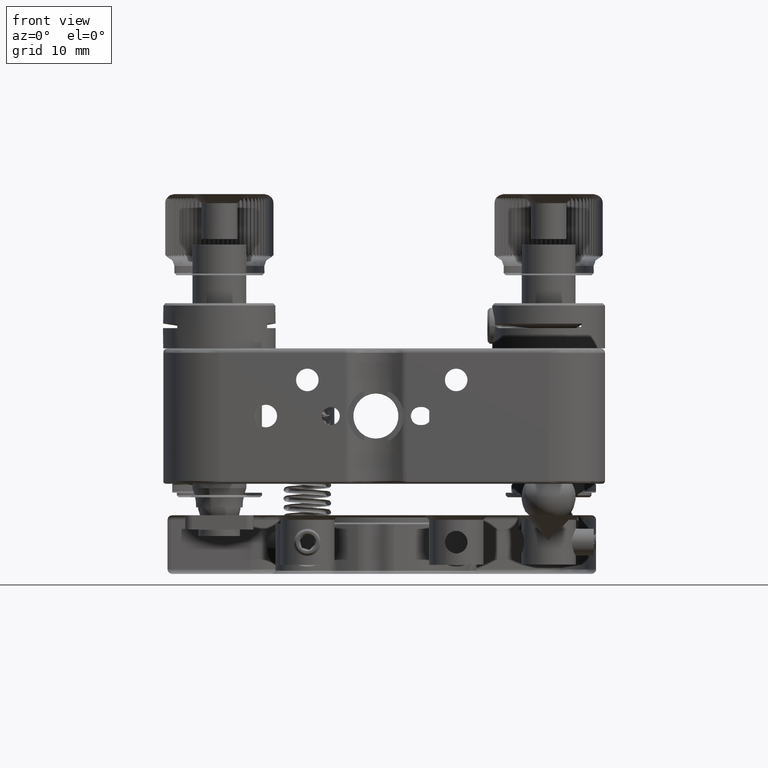
[diagram: clean part render]
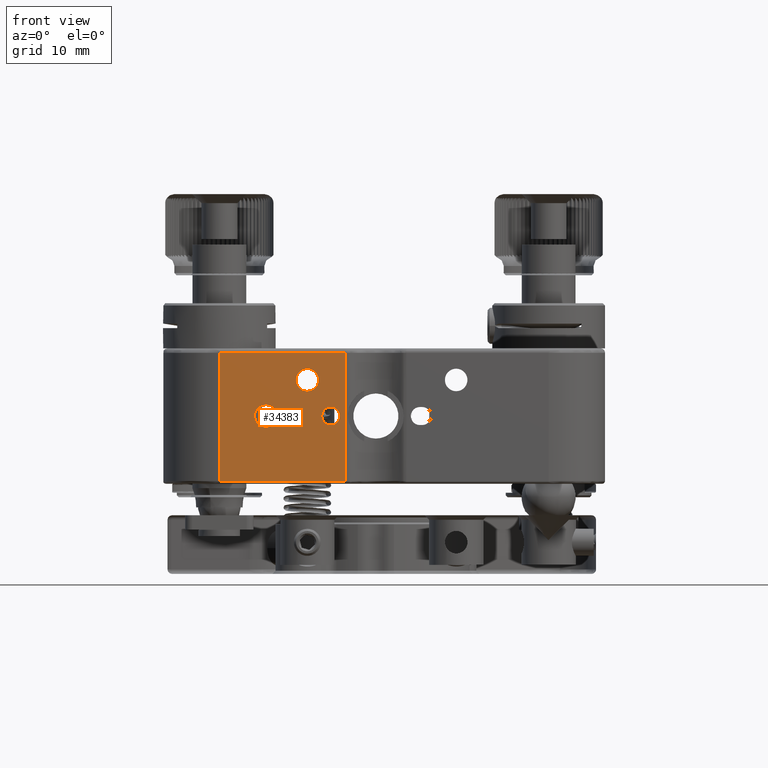
[diagram: same view with one face highlighted and labeled with its STEP entity id]
A machine part, front view. The second image highlights one B-rep face of the part: STEP entity #34383.
In plain terms, the highlighted planar face has unit normal (0, 1, 0).
Its self-contained STEP definition (entity closure, byte-faithful):
#157 = EDGE_LOOP ( 'NONE', ( #32405, #35782 ) ) ;
#788 = CARTESIAN_POINT ( 'NONE',  ( -14.22810262512532020, -24.50000000000000355, 0.5389796670263266032 ) ) ;
#1160 = CARTESIAN_POINT ( 'NONE',  ( -12.71428919564071158, -24.49999999999999289, -1.189204713810559033 ) ) ;
#1221 = ORIENTED_EDGE ( 'NONE', *, *, #4193, .F. ) ;
#1595 = CARTESIAN_POINT ( 'NONE',  ( -12.07471000977168529, -24.49999999999999645, -0.7243921280120796391 ) ) ;
#1926 = CARTESIAN_POINT ( 'NONE',  ( -9.000006458386573982, -24.50000000000000000, 2.854149930823155934 ) ) ;
#2022 = CARTESIAN_POINT ( 'NONE',  ( -11.92357851992510831, -24.50000000000000355, 0.4230013043505224668 ) ) ;
#2142 = CARTESIAN_POINT ( 'NONE',  ( -9.323014498037817788, -24.49999999999999645, 3.055195079937230496 ) ) ;
#2384 = B_SPLINE_CURVE_WITH_KNOTS ( 'NONE', 3,
 ( #31352, #20215, #14181, #31137, #27800, #34700, #10824, #41424, #30473, #24440, #27571, #13514, #41205, #37854, #38073, #4087, #26903, #44113, #41863, #11269, #31792, #4977, #24660, #24875, #8332, #4300, #17965, #4525, #11045, #25318, #18195, #14398, #38296, #22185 ),
 .UNSPECIFIED., .F., .F.,
 ( 4, 1, 1, 2, 2, 2, 1, 1, 2, 2, 2, 1, 1, 2, 2, 2, 1, 1, 2, 2, 4 ),
 ( 0.000000000000000000, 0.06249999999999768241, 0.09374999999999654443, 0.1093749999999966971, 0.1249999999999968359, 0.2499999999999985012, 0.3124999999999995004, 0.3437500000000000000, 0.3593750000000001110, 0.3750000000000001665, 0.5000000000000000000, 0.5624999999999998890, 0.5937499999999994449, 0.6093749999999987788, 0.6249999999999982236, 0.7499999999999960032, 0.8124999999999952260, 0.8437499999999955591, 0.8593749999999957812, 0.8749999999999960032, 1.000000000000000000 ),
 .UNSPECIFIED. ) ;
#2665 = ORIENTED_EDGE ( 'NONE', *, *, #43011, .F. ) ;
#2766 = VERTEX_POINT ( 'NONE', #12212 ) ;
#2811 = CARTESIAN_POINT ( 'NONE',  ( -8.812503971910276235, -24.50000000000000711, 2.779254874557330890 ) ) ;
#2980 = EDGE_CURVE ( 'NONE', #12506, #12506, #4819, .T. ) ;
#3599 = VERTEX_POINT ( 'NONE', #22978 ) ;
#4087 = CARTESIAN_POINT ( 'NONE',  ( -7.279322472432155244, -24.49999999999999645, 3.687325485216337295 ) ) ;
#4193 = EDGE_CURVE ( 'NONE', #3599, #42985, #39685, .T. ) ;
#4196 = LINE ( 'NONE', #27910, #12811 ) ;
#4300 = CARTESIAN_POINT ( 'NONE',  ( -7.676985501962285241, -24.49999999999999289, 4.944804920062807696 ) ) ;
#4375 = CARTESIAN_POINT ( 'NONE',  ( -14.04480492006297254, -24.49999999999998934, 0.8230144980380312836 ) ) ;
#4525 = CARTESIAN_POINT ( 'NONE',  ( -7.903475382809300065, -24.49999999999999645, 5.100119322147149248 ) ) ;
#4600 = CARTESIAN_POINT ( 'NONE',  ( -14.24585006917693697, -24.50000000000001066, 0.5000064583866753454 ) ) ;
#4747 = CARTESIAN_POINT ( 'NONE',  ( -13.09999999999999787, -24.49999999999999645, -1.249999999999988898 ) ) ;
#4819 = CIRCLE ( 'NONE', #11290, 1.000000000000000000 ) ;
#4973 = CARTESIAN_POINT ( 'NONE',  ( -11.91076689319975479, -24.50000000000000000, 0.3856389984865310483 ) ) ;
#4977 = CARTESIAN_POINT ( 'NONE',  ( -7.323578519925167285, -24.49999999999999645, 4.423001304350517415 ) ) ;
#5067 = VERTEX_POINT ( 'NONE', #18056 ) ;
#5181 = CARTESIAN_POINT ( 'NONE',  ( -14.19890197946528154, -24.50000000000000711, -0.6202885519843136519 ) ) ;
#5309 = VECTOR ( 'NONE', #29624, 1000.000000000000000 ) ;
#5736 = CARTESIAN_POINT ( 'NONE',  ( -9.670152050935886479, -24.49999999999999645, 3.559902883676698160 ) ) ;
#6706 = EDGE_LOOP ( 'NONE', ( #19573, #29398, #2665, #1221 ) ) ;
#7519 = CARTESIAN_POINT ( 'NONE',  ( -13.09999999999999787, -24.49999999999999645, 1.249999999999988898 ) ) ;
#7958 = CARTESIAN_POINT ( 'NONE',  ( -13.29644242615619376, -24.49999999999998934, 1.239029422040993644 ) ) ;
#8103 = CARTESIAN_POINT ( 'NONE',  ( -12.67695880349794457, -24.49999999999999289, -1.176405706191731237 ) ) ;
#8325 = CARTESIAN_POINT ( 'NONE',  ( -12.90355757384351776, -24.50000000000000355, -1.239029422040994532 ) ) ;
#8332 = CARTESIAN_POINT ( 'NONE',  ( -7.494378566625884197, -24.49999999999999289, 4.762040589323907724 ) ) ;
#8451 = CARTESIAN_POINT ( 'NONE',  ( -8.499999999999996447, -24.49999999999999645, 5.249999999999987566 ) ) ;
#8772 = CARTESIAN_POINT ( 'NONE',  ( -12.50347538280958304, -24.49999999999999645, 1.100119322147436574 ) ) ;
#8864 = AXIS2_PLACEMENT_3D ( 'NONE', #10209, #43941, #20262 ) ;
#8894 = CARTESIAN_POINT ( 'NONE',  ( -9.505621433373882212, -24.50000000000000000, 3.237959410676004790 ) ) ;
#9660 = VERTEX_POINT ( 'NONE', #27824 ) ;
#9889 = CARTESIAN_POINT ( 'NONE',  ( -13.09999999999999787, -24.49999999999999645, 1.249999999999988898 ) ) ;
#10209 = CARTESIAN_POINT ( 'NONE',  ( -24.49999999999999645, -24.49999999999999645, 7.500000000000000000 ) ) ;
#10769 = CARTESIAN_POINT ( 'NONE',  ( -4.276388603226822127, -24.49999999999999645, 7.500000000000000000 ) ) ;
#10824 = CARTESIAN_POINT ( 'NONE',  ( -8.059902883676750562, -24.49999999999999645, 2.829847949064069557 ) ) ;
#11045 = CARTESIAN_POINT ( 'NONE',  ( -7.961020332973944846, -24.49999999999999645, 5.128102625125183778 ) ) ;
#11121 = CARTESIAN_POINT ( 'NONE',  ( -14.32067752756757706, -24.50000000000000000, 0.3126745147832391547 ) ) ;
#11223 = EDGE_LOOP ( 'NONE', ( #12351 ) ) ;
#11269 = CARTESIAN_POINT ( 'NONE',  ( -7.292923930133398791, -24.49999999999999289, 4.329350316428354439 ) ) ;
#11290 = AXIS2_PLACEMENT_3D ( 'NONE', #15992, #43247, #26257 ) ;
#11482 = CARTESIAN_POINT ( 'NONE',  ( -12.27698550196250515, -24.50000000000000355, 0.9448049200630257438 ) ) ;
#11599 = CARTESIAN_POINT ( 'NONE',  ( -8.923041196502039085, -24.49999999999999645, 5.176405706191729017 ) ) ;
#11625 = EDGE_CURVE ( 'NONE', #39552, #3599, #4196, .T. ) ;
#11701 = CARTESIAN_POINT ( 'NONE',  ( -12.56102033297412568, -24.50000000000000000, 1.128102625125367631 ) ) ;
#11824 = CARTESIAN_POINT ( 'NONE',  ( -9.645850069176798769, -24.49999999999999645, 4.500006458386681452 ) ) ;
#11922 = CARTESIAN_POINT ( 'NONE',  ( -12.15519507993708892, -24.49999999999999645, -0.8230144980376100650 ) ) ;
#12045 = CARTESIAN_POINT ( 'NONE',  ( -8.885710804359266746, -24.49999999999999645, 5.189204713810555702 ) ) ;
#12212 = CARTESIAN_POINT ( 'NONE',  ( -8.499999999999996447, -24.49999999999999645, 2.750000000000009326 ) ) ;
#12351 = ORIENTED_EDGE ( 'NONE', *, *, #2980, .F. ) ;
#12356 = CARTESIAN_POINT ( 'NONE',  ( -13.63897966702616671, -24.50000000000000000, -1.128102625125190217 ) ) ;
#12506 = VERTEX_POINT ( 'NONE', #40406 ) ;
#12618 = VECTOR ( 'NONE', #17154, 1000.000000000000000 ) ;
#12678 = FACE_BOUND ( 'NONE', #157, .T. ) ;
#12811 = VECTOR ( 'NONE', #41752, 1000.000000000000000 ) ;
#13131 = CARTESIAN_POINT ( 'NONE',  ( -9.750033650950856057, -24.50000000000000000, 3.920697887378463253 ) ) ;
#13514 = CARTESIAN_POINT ( 'NONE',  ( -7.399880677852710420, -24.50000000000000000, 3.403475382809433736 ) ) ;
#13575 = CARTESIAN_POINT ( 'NONE',  ( -18.24999999999999645, -24.49999999999999289, 6.999999999999999112 ) ) ;
#14181 = CARTESIAN_POINT ( 'NONE',  ( -8.303557573843157513, -24.50000000000000000, 2.760970577959005023 ) ) ;
#14398 = CARTESIAN_POINT ( 'NONE',  ( -8.187496028089709554, -24.50000000000000000, 5.220745125442666890 ) ) ;
#14473 = CARTESIAN_POINT ( 'NONE',  ( -14.34993269809850602, -24.49999999999999645, 0.1586042252435887201 ) ) ;
#14738 = CARTESIAN_POINT ( 'NONE',  ( -9.262040589324172402, -24.50000000000000000, 5.005621433373426576 ) ) ;
#14849 = CARTESIAN_POINT ( 'NONE',  ( -11.87932247243241868, -24.50000000000000355, -0.3126745147843174588 ) ) ;
#14925 = CARTESIAN_POINT ( 'NONE',  ( -13.72028855198292696, -24.49999999999999289, 1.098901979465967571 ) ) ;
#15066 = CARTESIAN_POINT ( 'NONE',  ( -11.99988067785271362, -24.50000000000000355, -0.5965246171905645989 ) ) ;
#15282 = CARTESIAN_POINT ( 'NONE',  ( -12.59999354161357665, -24.49999999999999645, 1.145850069176965969 ) ) ;
#15497 = CARTESIAN_POINT ( 'NONE',  ( -11.86091168879520730, -24.49999999999998579, 0.1962934954574241386 ) ) ;
#15613 = CARTESIAN_POINT ( 'NONE',  ( -8.978570188832593502, -24.50000000000000355, 2.845078342311301967 ) ) ;
#15708 = CARTESIAN_POINT ( 'NONE',  ( -12.09437856662545663, -24.49999999999999289, 0.7620405893234801775 ) ) ;
#15992 = CARTESIAN_POINT ( 'NONE',  ( -5.899999999999996803, -24.50000000000000000, 0.000000000000000000 ) ) ;
#17154 = DIRECTION ( 'NONE',  ( 1.000000000000000000, -0.000000000000000000, -0.000000000000000000 ) ) ;
#17586 = VERTEX_POINT ( 'NONE', #29092 ) ;
#17965 = CARTESIAN_POINT ( 'NONE',  ( -7.775607871987740616, -24.49999999999999645, 5.025289990228140269 ) ) ;
#18056 = CARTESIAN_POINT ( 'NONE',  ( -8.499999999999996447, -24.49999999999999645, 5.249999999999987566 ) ) ;
#18087 = CARTESIAN_POINT ( 'NONE',  ( -8.696442426156433925, -24.49999999999999645, 5.239029422040990980 ) ) ;
#18191 = CARTESIAN_POINT ( 'NONE',  ( -13.09999999999999787, -24.49999999999999645, -1.249999999999988898 ) ) ;
#18195 = CARTESIAN_POINT ( 'NONE',  ( -8.021429811167404722, -24.49999999999999289, 5.154921657688697145 ) ) ;
#18266 = CARTESIAN_POINT ( 'NONE',  ( -14.25493010742308009, -24.50000000000000000, 0.4785488709734745938 ) ) ;
#18411 = CARTESIAN_POINT ( 'NONE',  ( -13.60000645838658428, -24.50000000000000355, -1.145850069176866048 ) ) ;
#18740 = CARTESIAN_POINT ( 'NONE',  ( -9.720677527567314513, -24.50000000000000000, 4.312674514785245883 ) ) ;
#18837 = CARTESIAN_POINT ( 'NONE',  ( -11.97189737487473060, -24.50000000000000000, -0.5389796670259718869 ) ) ;
#19053 = CARTESIAN_POINT ( 'NONE',  ( -13.69652461719086567, -24.49999999999999289, -1.100119322147162348 ) ) ;
#19573 = ORIENTED_EDGE ( 'NONE', *, *, #11625, .F. ) ;
#20037 = FACE_BOUND ( 'NONE', #11223, .T. ) ;
#20215 = CARTESIAN_POINT ( 'NONE',  ( -8.420612784121260574, -24.50000000000000000, 2.750000000000010214 ) ) ;
#20262 = DIRECTION ( 'NONE',  ( 0.000000000000000000, -0.000000000000000000, 1.000000000000000000 ) ) ;
#21166 = CARTESIAN_POINT ( 'NONE',  ( -13.42946201445244547, -24.49999999999999645, 1.207031902993923600 ) ) ;
#21383 = CARTESIAN_POINT ( 'NONE',  ( -13.17938721587837669, -24.49999999999999289, 1.249999999999988898 ) ) ;
#21745 = CARTESIAN_POINT ( 'NONE',  ( -14.28923310680023562, -24.49999999999999645, -0.3856389984864133091 ) ) ;
#22181 = CARTESIAN_POINT ( 'NONE',  ( -12.62142981116733154, -24.50000000000000000, 1.154921657688698033 ) ) ;
#22185 = CARTESIAN_POINT ( 'NONE',  ( -8.499999999999996447, -24.49999999999999645, 5.249999999999987566 ) ) ;
#22403 = CARTESIAN_POINT ( 'NONE',  ( -13.92301449803784053, -24.49999999999999289, -0.9448049200628160227 ) ) ;
#22521 = CARTESIAN_POINT ( 'NONE',  ( -9.038979667026145748, -24.50000000000000355, 2.871897374874849529 ) ) ;
#22978 = CARTESIAN_POINT ( 'NONE',  ( -18.24999999999999645, -24.49999999999999289, -7.200000000000001954 ) ) ;
#23833 = LINE ( 'NONE', #37699, #12618 ) ;
#24440 = CARTESIAN_POINT ( 'NONE',  ( -7.555195079937086611, -24.49999999999999289, 3.176985501962388714 ) ) ;
#24660 = CARTESIAN_POINT ( 'NONE',  ( -7.329847949064140167, -24.50000000000000355, 4.440097116323317827 ) ) ;
#24732 = CARTESIAN_POINT ( 'NONE',  ( -14.20011932214737094, -24.50000000000000355, 0.5965246171911171569 ) ) ;
#24875 = CARTESIAN_POINT ( 'NONE',  ( -7.401098020534612409, -24.49999999999999645, 4.620288551984485181 ) ) ;
#24990 = CARTESIAN_POINT ( 'NONE',  ( -8.829462014452621688, -24.50000000000000000, 5.207031902993922934 ) ) ;
#25091 = CARTESIAN_POINT ( 'NONE',  ( -14.30707606986676161, -24.49999999999999289, -0.3293503164281858520 ) ) ;
#25211 = CARTESIAN_POINT ( 'NONE',  ( -9.120288551984041092, -24.49999999999999645, 5.098901979465412460 ) ) ;
#25313 = CARTESIAN_POINT ( 'NONE',  ( -13.82439212801248729, -24.49999999999999645, -1.025289990228152703 ) ) ;
#25318 = CARTESIAN_POINT ( 'NONE',  ( -7.999993541613474868, -24.49999999999999645, 5.145850069176862718 ) ) ;
#25435 = CARTESIAN_POINT ( 'NONE',  ( -9.654930107423112418, -24.50000000000000711, 4.478548870973224183 ) ) ;
#25532 = CARTESIAN_POINT ( 'NONE',  ( -11.85006730190148794, -24.49999999999999645, -0.1586042252438643885 ) ) ;
#25748 = CARTESIAN_POINT ( 'NONE',  ( -12.33795941067628910, -24.49999999999999645, -1.005621433374308316 ) ) ;
#26040 = VERTEX_POINT ( 'NONE', #35553 ) ;
#26257 = DIRECTION ( 'NONE',  ( 1.000000000000000000, 0.000000000000000000, 0.000000000000000000 ) ) ;
#26523 = CARTESIAN_POINT ( 'NONE',  ( -9.096524617190837603, -24.49999999999999645, 2.899880677852900490 ) ) ;
#26903 = CARTESIAN_POINT ( 'NONE',  ( -7.250067301901225392, -24.50000000000000000, 3.841395774756153347 ) ) ;
#27168 = FACE_OUTER_BOUND ( 'NONE', #6706, .T. ) ;
#27571 = CARTESIAN_POINT ( 'NONE',  ( -7.474710009771682984, -24.49999999999999645, 3.275607871987917807 ) ) ;
#27800 = CARTESIAN_POINT ( 'NONE',  ( -8.114289195640537855, -24.50000000000000000, 2.810795286189442077 ) ) ;
#27824 = CARTESIAN_POINT ( 'NONE',  ( -13.09999999999999787, -24.49999999999999645, 1.249999999999988898 ) ) ;
#27910 = CARTESIAN_POINT ( 'NONE',  ( -24.49999999999999645, -24.49999999999999645, -7.200000000000001954 ) ) ;
#28084 = CARTESIAN_POINT ( 'NONE',  ( -14.33908831120478311, -24.49999999999998579, -0.1962934954571821378 ) ) ;
#28456 = CARTESIAN_POINT ( 'NONE',  ( -11.89292393013323235, -24.50000000000000000, 0.3293503164283674844 ) ) ;
#28535 = CARTESIAN_POINT ( 'NONE',  ( -13.86204058932358052, -24.49999999999999645, 1.005621433373468099 ) ) ;
#28676 = CARTESIAN_POINT ( 'NONE',  ( -11.94506989257691387, -24.50000000000000000, -0.4785488709733397017 ) ) ;
#28858 = EDGE_CURVE ( 'NONE', #9660, #17586, #41929, .T. ) ;
#28954 = EDGE_CURVE ( 'NONE', #17586, #9660, #32332, .T. ) ;
#29092 = CARTESIAN_POINT ( 'NONE',  ( -13.09999999999999787, -24.49999999999999645, -1.249999999999988898 ) ) ;
#29111 = CARTESIAN_POINT ( 'NONE',  ( -11.92984794906408119, -24.50000000000000355, 0.4400971163232584860 ) ) ;
#29320 = CARTESIAN_POINT ( 'NONE',  ( -13.41250397191000587, -24.50000000000000000, -1.220745125442668222 ) ) ;
#29398 = ORIENTED_EDGE ( 'NONE', *, *, #36806, .F. ) ;
#29624 = DIRECTION ( 'NONE',  ( 0.000000000000000000, -0.000000000000000000, 1.000000000000000000 ) ) ;
#30066 = CARTESIAN_POINT ( 'NONE',  ( -18.24999999999999645, -24.49999999999999645, 7.500000000000000000 ) ) ;
#30306 = PLANE ( 'NONE',  #8864 ) ;
#30473 = CARTESIAN_POINT ( 'NONE',  ( -7.737959410676285010, -24.50000000000000000, 2.994378566625691462 ) ) ;
#30855 = LINE ( 'NONE', #10769, #30959 ) ;
#30959 = VECTOR ( 'NONE', #43837, 1000.000000000000000 ) ;
#31137 = CARTESIAN_POINT ( 'NONE',  ( -8.170537985547072779, -24.50000000000000000, 2.792968097006074402 ) ) ;
#31352 = CARTESIAN_POINT ( 'NONE',  ( -8.499999999999996447, -24.49999999999999645, 2.750000000000009326 ) ) ;
#31423 = CARTESIAN_POINT ( 'NONE',  ( -13.54009711632351021, -24.49999999999999645, 1.170152050935785448 ) ) ;
#31684 = CARTESIAN_POINT ( 'NONE',  ( -8.940097116323372006, -24.49999999999999289, 5.170152050935854504 ) ) ;
#31788 = CARTESIAN_POINT ( 'NONE',  ( -12.77053798554733888, -24.50000000000000000, -1.207031902993924044 ) ) ;
#31792 = CARTESIAN_POINT ( 'NONE',  ( -7.310766893199860839, -24.49999999999999645, 4.385638998486521167 ) ) ;
#32009 = CARTESIAN_POINT ( 'NONE',  ( -13.25913117625922766, -24.50000000000000711, -1.249999999999988676 ) ) ;
#32332 = B_SPLINE_CURVE_WITH_KNOTS ( 'NONE', 3,
 ( #18191, #38724, #8325, #31788, #1160, #8103, #32650, #42526, #25748, #11922, #1595, #15066, #18837, #35585, #28676, #14849, #25532, #32438, #15497, #28456, #4973, #2022, #29111, #42081, #15708, #11482, #42302, #8772, #11701, #15282, #22181, #35798, #39384, #9889 ),
 .UNSPECIFIED., .F., .F.,
 ( 4, 1, 1, 2, 2, 2, 1, 1, 2, 2, 2, 1, 1, 2, 2, 2, 1, 1, 2, 2, 4 ),
 ( 0.000000000000000000, 0.06249999999999791833, 0.09374999999999757139, 0.1093749999999973910, 0.1249999999999972244, 0.2499999999999955591, 0.3124999999999942268, 0.3437499999999940048, 0.3593749999999937828, 0.3749999999999936162, 0.4999999999999923395, 0.5624999999999916733, 0.5937499999999913403, 0.6093749999999911182, 0.6249999999999908962, 0.7499999999999931166, 0.8124999999999945599, 0.8437499999999953371, 0.8593749999999951150, 0.8749999999999948930, 1.000000000000000000 ),
 .UNSPECIFIED. ) ;
#32338 = CARTESIAN_POINT ( 'NONE',  ( -9.749932698098248807, -24.50000000000000000, 4.158604225243069941 ) ) ;
#32405 = ORIENTED_EDGE ( 'NONE', *, *, #40276, .F. ) ;
#32438 = CARTESIAN_POINT ( 'NONE',  ( -11.84996634904926793, -24.50000000000000355, 0.07930211262193215260 ) ) ;
#32553 = CARTESIAN_POINT ( 'NONE',  ( -8.499999999999996447, -24.49999999999999645, 2.750000000000009326 ) ) ;
#32650 = CARTESIAN_POINT ( 'NONE',  ( -12.65990288367671468, -24.49999999999999289, -1.170152050935894694 ) ) ;
#32768 = CARTESIAN_POINT ( 'NONE',  ( -9.707076069866936052, -24.49999999999999289, 3.670649683572151822 ) ) ;
#32984 = CARTESIAN_POINT ( 'NONE',  ( -9.224392128012446790, -24.49999999999999645, 2.974710009771929897 ) ) ;
#33852 = FACE_BOUND ( 'NONE', #43922, .T. ) ;
#34383 = ADVANCED_FACE ( 'NONE', ( #27168, #12678, #33852, #20037 ), #30306, .F. ) ;
#34700 = CARTESIAN_POINT ( 'NONE',  ( -8.076958803497849004, -24.49999999999999645, 2.823594293808268763 ) ) ;
#34773 = CARTESIAN_POINT ( 'NONE',  ( -13.48571080435915626, -24.49999999999999645, 1.189204713810557479 ) ) ;
#34992 = CARTESIAN_POINT ( 'NONE',  ( -13.52304119650198366, -24.49999999999999289, 1.176405706191729905 ) ) ;
#35133 = CARTESIAN_POINT ( 'NONE',  ( -14.27642148007488743, -24.49999999999999645, -0.4230013043504563530 ) ) ;
#35215 = CARTESIAN_POINT ( 'NONE',  ( -14.12528999022842768, -24.49999999999999289, 0.7243921280128158280 ) ) ;
#35363 = CARTESIAN_POINT ( 'NONE',  ( -13.57857018883262690, -24.50000000000000355, -1.154921657688697367 ) ) ;
#35553 = CARTESIAN_POINT ( 'NONE',  ( -4.276388603226823015, -24.50000000000000000, 6.999999999999999112 ) ) ;
#35585 = CARTESIAN_POINT ( 'NONE',  ( -11.95414993082308541, -24.49999999999999645, -0.5000064583864783918 ) ) ;
#35698 = CARTESIAN_POINT ( 'NONE',  ( -9.628102625125071867, -24.50000000000000355, 4.538979667026341147 ) ) ;
#35782 = ORIENTED_EDGE ( 'NONE', *, *, #36379, .F. ) ;
#35798 = CARTESIAN_POINT ( 'NONE',  ( -12.78749602809031494, -24.50000000000000000, 1.220745125442668222 ) ) ;
#36244 = ORIENTED_EDGE ( 'NONE', *, *, #28858, .F. ) ;
#36379 = EDGE_CURVE ( 'NONE', #2766, #5067, #2384, .T. ) ;
#36803 = CARTESIAN_POINT ( 'NONE',  ( -8.659131176259492690, -24.50000000000000000, 2.750000000000009770 ) ) ;
#36806 = EDGE_CURVE ( 'NONE', #26040, #39552, #30855, .T. ) ;
#36957 = CARTESIAN_POINT ( 'NONE',  ( -4.276388603226822127, -24.49999999999999289, -7.200000000000001954 ) ) ;
#37020 = CARTESIAN_POINT ( 'NONE',  ( -9.689233106800346107, -24.50000000000000000, 3.614361001513802574 ) ) ;
#37699 = CARTESIAN_POINT ( 'NONE',  ( 0.000000000000000000, -24.49999999999999645, 6.999999999999999112 ) ) ;
#37854 = CARTESIAN_POINT ( 'NONE',  ( -7.354149930823084880, -24.49999999999998934, 3.499993541613519721 ) ) ;
#38073 = CARTESIAN_POINT ( 'NONE',  ( -7.345069892576944426, -24.49999999999999645, 3.521451129026575977 ) ) ;
#38296 = CARTESIAN_POINT ( 'NONE',  ( -8.340868823740489546, -24.50000000000000355, 5.249999999999989342 ) ) ;
#38625 = CARTESIAN_POINT ( 'NONE',  ( -9.525289990227904013, -24.49999999999999289, 4.724392128012850911 ) ) ;
#38724 = CARTESIAN_POINT ( 'NONE',  ( -13.02061278412146272, -24.49999999999999289, -1.249999999999988676 ) ) ;
#39165 = CARTESIAN_POINT ( 'NONE',  ( -14.10562143337384811, -24.50000000000000000, -0.7620405893238957340 ) ) ;
#39384 = CARTESIAN_POINT ( 'NONE',  ( -12.94086882374108782, -24.49999999999999645, 1.249999999999988898 ) ) ;
#39500 = CARTESIAN_POINT ( 'NONE',  ( -9.676421480074944625, -24.50000000000000355, 3.576998695649662885 ) ) ;
#39552 = VERTEX_POINT ( 'NONE', #36957 ) ;
#39685 = LINE ( 'NONE', #30066, #5309 ) ;
#40276 = EDGE_CURVE ( 'NONE', #5067, #2766, #43305, .T. ) ;
#40406 = CARTESIAN_POINT ( 'NONE',  ( -4.899999999999996803, -24.50000000000000000, 0.000000000000000000 ) ) ;
#41205 = CARTESIAN_POINT ( 'NONE',  ( -7.371897374874725628, -24.49999999999998934, 3.461020332974026559 ) ) ;
#41424 = CARTESIAN_POINT ( 'NONE',  ( -7.879711448014934838, -24.49999999999999645, 2.901098020535187949 ) ) ;
#41752 = DIRECTION ( 'NONE',  ( -1.000000000000000000, -0.000000000000000000, 0.000000000000000000 ) ) ;
#41863 = CARTESIAN_POINT ( 'NONE',  ( -7.260911688795435026, -24.49999999999999289, 4.196293495457407374 ) ) ;
#41929 = B_SPLINE_CURVE_WITH_KNOTS ( 'NONE', 3,
 ( #7519, #21383, #7958, #21166, #34773, #34992, #31423, #14925, #28535, #4375, #35215, #24732, #788, #4600, #18266, #11121, #14473, #42159, #28084, #25091, #21745, #35133, #42958, #5181, #39165, #22403, #25313, #19053, #12356, #18411, #35363, #29320, #32009, #4747 ),
 .UNSPECIFIED., .F., .F.,
 ( 4, 1, 1, 2, 2, 2, 1, 1, 2, 2, 2, 1, 1, 2, 2, 2, 1, 1, 2, 2, 4 ),
 ( 0.000000000000000000, 0.06249999999999762690, 0.09374999999999643341, 0.1093749999999964889, 0.1249999999999965306, 0.2499999999999914513, 0.3124999999999893419, 0.3437499999999886757, 0.3593749999999886202, 0.3749999999999885647, 0.4999999999999882316, 0.5624999999999881206, 0.5937499999999880096, 0.6093749999999882316, 0.6249999999999883427, 0.7499999999999918954, 0.8124999999999941158, 0.8437499999999951150, 0.8593749999999962252, 0.8749999999999973355, 1.000000000000000000 ),
 .UNSPECIFIED. ) ;
#41977 = CARTESIAN_POINT ( 'NONE',  ( -9.444804920062674469, -24.49999999999999289, 4.823014498038048714 ) ) ;
#42081 = CARTESIAN_POINT ( 'NONE',  ( -12.00109802053509611, -24.50000000000000711, 0.6202885519849669071 ) ) ;
#42159 = CARTESIAN_POINT ( 'NONE',  ( -14.35003365095072603, -24.50000000000000355, -0.07930211262179409637 ) ) ;
#42196 = CARTESIAN_POINT ( 'NONE',  ( -8.579387215878503170, -24.50000000000000711, 5.249999999999988454 ) ) ;
#42302 = CARTESIAN_POINT ( 'NONE',  ( -12.37560787198812307, -24.49999999999999289, 1.025289990228518189 ) ) ;
#42426 = CARTESIAN_POINT ( 'NONE',  ( -9.600119322146978718, -24.49999999999999645, 4.596524617191143136 ) ) ;
#42526 = CARTESIAN_POINT ( 'NONE',  ( -12.47971144801523380, -24.49999999999999289, -1.098901979465103373 ) ) ;
#42958 = CARTESIAN_POINT ( 'NONE',  ( -14.27015205093586658, -24.50000000000000355, -0.4400971163233401984 ) ) ;
#42985 = VERTEX_POINT ( 'NONE', #13575 ) ;
#43011 = EDGE_CURVE ( 'NONE', #42985, #26040, #23833, .T. ) ;
#43247 = DIRECTION ( 'NONE',  ( 2.220446049250313081E-16, -1.000000000000000000, 0.000000000000000000 ) ) ;
#43305 = B_SPLINE_CURVE_WITH_KNOTS ( 'NONE', 3,
 ( #8451, #42196, #18087, #24990, #12045, #11599, #31684, #25211, #14738, #41977, #38625, #42426, #35698, #11824, #25435, #18740, #32338, #13131, #43736, #32768, #37020, #39500, #5736, #43519, #8894, #2142, #32984, #26523, #22521, #1926, #15613, #2811, #36803, #32553 ),
 .UNSPECIFIED., .F., .F.,
 ( 4, 1, 1, 2, 2, 2, 1, 1, 2, 2, 2, 1, 1, 2, 2, 2, 1, 1, 2, 2, 4 ),
 ( 0.000000000000000000, 0.06249999999999901468, 0.09374999999999847344, 0.1093749999999980987, 0.1249999999999977240, 0.2499999999999970579, 0.3124999999999969469, 0.3437499999999972244, 0.3593749999999973910, 0.3749999999999975020, 0.4999999999999985567, 0.5624999999999991118, 0.5937499999999994449, 0.6093749999999993339, 0.6249999999999993339, 0.7499999999999986677, 0.8124999999999988898, 0.8437499999999988898, 0.8593749999999990008, 0.8749999999999991118, 1.000000000000000000 ),
 .UNSPECIFIED. ) ;
#43519 = CARTESIAN_POINT ( 'NONE',  ( -9.598901979465091827, -24.49999999999999645, 3.379711448015362052 ) ) ;
#43736 = CARTESIAN_POINT ( 'NONE',  ( -9.739088311205007287, -24.50000000000000355, 3.803706504543270306 ) ) ;
#43837 = DIRECTION ( 'NONE',  ( -0.000000000000000000, 0.000000000000000000, -1.000000000000000000 ) ) ;
#43922 = EDGE_LOOP ( 'NONE', ( #36244, #43973 ) ) ;
#43941 = DIRECTION ( 'NONE',  ( 0.000000000000000000, 1.000000000000000000, 0.000000000000000000 ) ) ;
#43973 = ORIENTED_EDGE ( 'NONE', *, *, #28954, .F. ) ;
#44113 = CARTESIAN_POINT ( 'NONE',  ( -7.249966349049395298, -24.49999999999999645, 4.079302112621920884 ) ) ;